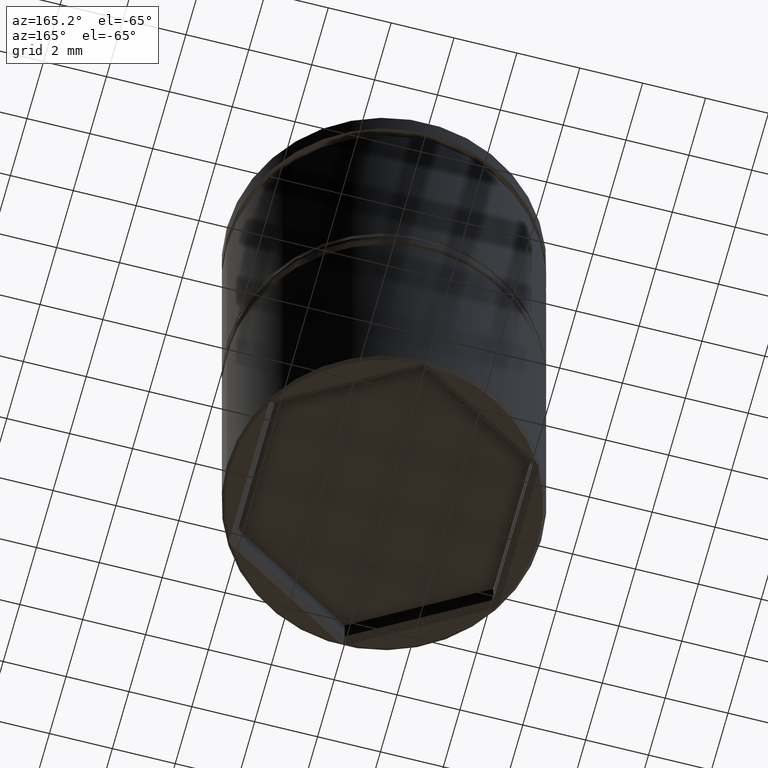
[diagram: clean part render]
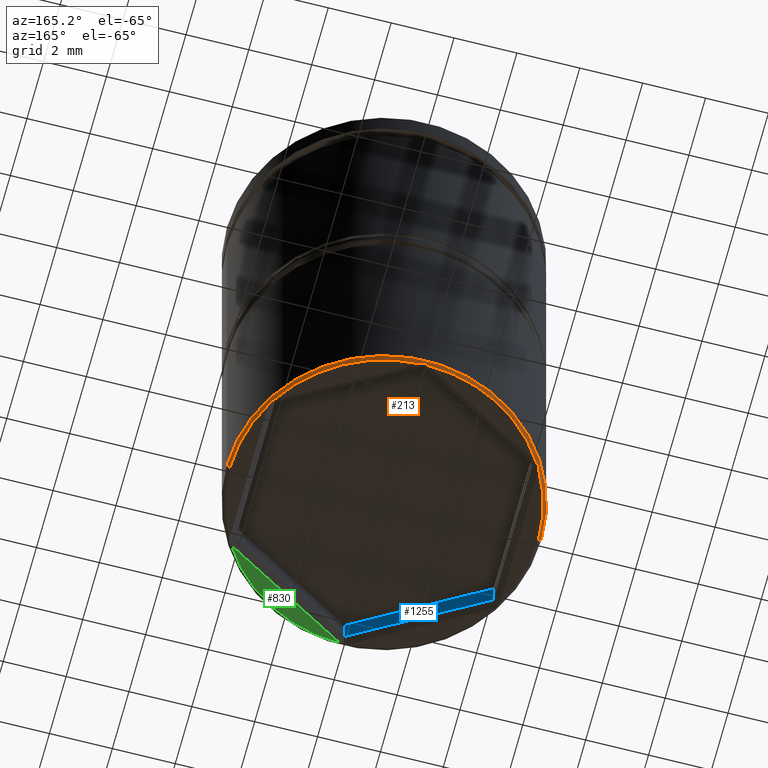
[diagram: same view with three faces highlighted in distinct colors, each labeled with its STEP entity id]
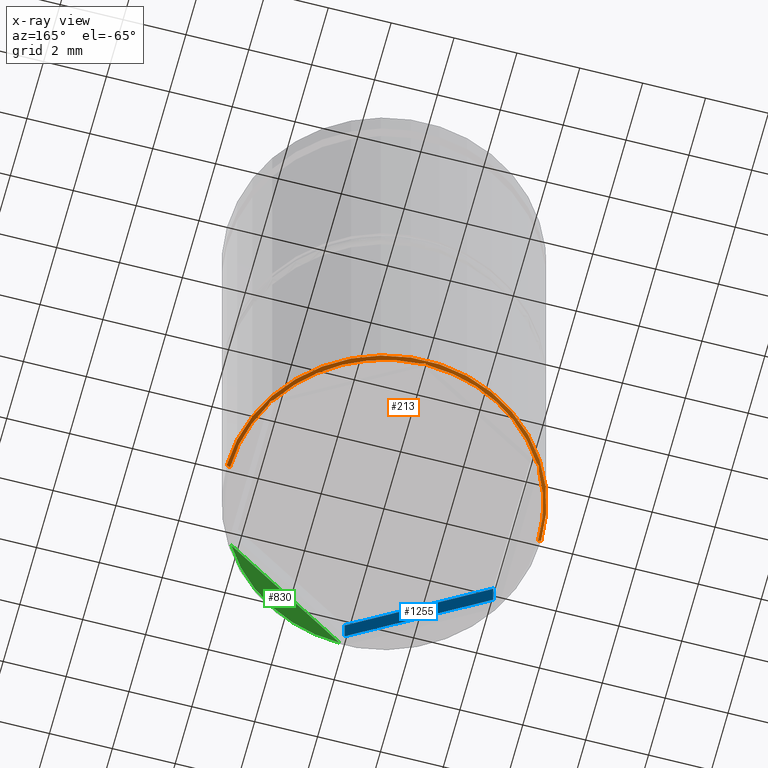
[diagram: x-ray of the same camera — body ghosted, the three highlighted faces saturated]
A machine part, auxiliary view with three faces highlighted in distinct colors.
The next image is the same camera in x-ray (body ghosted, the three faces saturated) — at least one of them is partly hidden behind the body in this view.
Their STEP definitions:

[orange] entity #213 — the highlighted conical surface has half-angle 45 deg.
#7 = DIRECTION ( 'NONE',  ( 0.000000000000000000, 0.000000000000000000, -1.000000000000000000 ) ) ;
#26 = ORIENTED_EDGE ( 'NONE', *, *, #197, .F. ) ;
#56 = ORIENTED_EDGE ( 'NONE', *, *, #274, .T. ) ;
#70 = CARTESIAN_POINT ( 'NONE',  ( -0.1153010050624300176, 4.898643248720151888, -17.50000000000000000 ) ) ;
#75 = VERTEX_POINT ( 'NONE', #980 ) ;
#87 = VERTEX_POINT ( 'NONE', #799 ) ;
#104 = CIRCLE ( 'NONE', #1358, 4.899999999999991473 ) ;
#114 = CARTESIAN_POINT ( 'NONE',  ( 0.000000000000000000, 0.000000000000000000, -17.50000000000000000 ) ) ;
#153 = CARTESIAN_POINT ( 'NONE',  ( -4.269734859267336091, 2.465132570366327158, -17.46973485926734071 ) ) ;
#172 = ORIENTED_EDGE ( 'NONE', *, *, #607, .T. ) ;
#197 = EDGE_CURVE ( 'NONE', #599, #276, #350, .T. ) ;
#207 = CARTESIAN_POINT ( 'NONE',  ( 4.290125711785978346, 2.388133565606506359, -17.49012571178598208 ) ) ;
#213 = ADVANCED_FACE ( 'NONE', ( #384 ), #572, .T. ) ;
#215 = CARTESIAN_POINT ( 'NONE',  ( 0.000000000000000000, 0.000000000000000000, -17.50000000000000000 ) ) ;
#216 = ORIENTED_EDGE ( 'NONE', *, *, #1318, .T. ) ;
#238 = CARTESIAN_POINT ( 'NONE',  ( -0.03844244460728678953, 4.919964518745049809, -17.48003548125494433 ) ) ;
#248 = CARTESIAN_POINT ( 'NONE',  ( 4.241593036647651083, 2.493274392986010390, -17.48003548125494433 ) ) ;
#267 = CARTESIAN_POINT ( 'NONE',  ( -4.213247191338535202, 2.521291069032205012, -17.49012571178598208 ) ) ;
#268 = VERTEX_POINT ( 'NONE', #1343 ) ;
#274 = EDGE_CURVE ( 'NONE', #599, #488, #363, .T. ) ;
#276 = VERTEX_POINT ( 'NONE', #406 ) ;
#315 = CARTESIAN_POINT ( 'NONE',  ( 0.000000000000000000, 0.000000000000000000, -17.39999999999999147 ) ) ;
#338 = VERTEX_POINT ( 'NONE', #557 ) ;
#345 = EDGE_CURVE ( 'NONE', #87, #268, #1164, .T. ) ;
#350 = CIRCLE ( 'NONE', #593, 4.899999999999991473 ) ;
#356 = B_SPLINE_CURVE_WITH_KNOTS ( 'NONE', 3,
 ( #1160, #207, #516, #1383 ),
 .UNSPECIFIED., .F., .F.,
 ( 4, 4 ),
 ( 0.000000000000000000, 0.0001233298202642967099 ),
 .UNSPECIFIED. ) ;
#357 = CARTESIAN_POINT ( 'NONE',  ( -4.241593036647650194, 2.493274392986013055, -17.48003548125494433 ) ) ;
#363 = B_SPLINE_CURVE_WITH_KNOTS ( 'NONE', 3,
 ( #928, #1045, #1363, #948 ),
 .UNSPECIFIED., .F., .F.,
 ( 4, 4 ),
 ( 1.897353801849632760E-19, 0.0001233298202642985259 ),
 .UNSPECIFIED. ) ;
#374 = CIRCLE ( 'NONE', #994, 4.899999999999991473 ) ;
#382 = ORIENTED_EDGE ( 'NONE', *, *, #1028, .F. ) ;
#384 = FACE_OUTER_BOUND ( 'NONE', #1247, .T. ) ;
#406 = CARTESIAN_POINT ( 'NONE',  ( 4.184698994937568806, 2.549175223826016357, -17.50000000000000000 ) ) ;
#409 = EDGE_CURVE ( 'NONE', #1081, #932, #548, .T. ) ;
#416 = B_SPLINE_CURVE_WITH_KNOTS ( 'NONE', 3,
 ( #893, #267, #357, #153 ),
 .UNSPECIFIED., .F., .F.,
 ( 4, 4 ),
 ( 0.000000000000000000, 0.0001233298202643005859 ),
 .UNSPECIFIED. ) ;
#444 = VECTOR ( 'NONE', #1216, 1000.000000000000227 ) ;
#460 = CARTESIAN_POINT ( 'NONE',  ( -4.269734859267336091, 2.465132570366327158, -17.46973485926734071 ) ) ;
#488 = VERTEX_POINT ( 'NONE', #1346 ) ;
#516 = CARTESIAN_POINT ( 'NONE',  ( 4.280035481254937935, 2.426690125759038530, -17.48003548125494433 ) ) ;
#521 = B_SPLINE_CURVE_WITH_KNOTS ( 'NONE', 3,
 ( #531, #248, #639, #665 ),
 .UNSPECIFIED., .F., .F.,
 ( 4, 4 ),
 ( 0.000000000000000000, 0.0001233298202642985259 ),
 .UNSPECIFIED. ) ;
#531 = CARTESIAN_POINT ( 'NONE',  ( 4.269734859267336979, 2.465132570366324050, -17.46973485926734071 ) ) ;
#535 = LINE ( 'NONE', #1297, #661 ) ;
#548 = CIRCLE ( 'NONE', #1335, 5.000000000000000000 ) ;
#557 = CARTESIAN_POINT ( 'NONE',  ( 4.899999999999991473, 0.000000000000000000, -17.50000000000000000 ) ) ;
#561 = LINE ( 'NONE', #981, #444 ) ;
#564 = CARTESIAN_POINT ( 'NONE',  ( 0.000000000000000000, 0.000000000000000000, -17.39999999999999147 ) ) ;
#570 = ORIENTED_EDGE ( 'NONE', *, *, #717, .T. ) ;
#572 = CONICAL_SURFACE ( 'NONE', #1288, 5.000000000000000000, 0.7853981633974439491 ) ;
#583 = ORIENTED_EDGE ( 'NONE', *, *, #1078, .F. ) ;
#593 = AXIS2_PLACEMENT_3D ( 'NONE', #933, #938, #641 ) ;
#595 = DIRECTION ( 'NONE',  ( 1.000000000000000000, 0.000000000000000000, 0.000000000000000000 ) ) ;
#599 = VERTEX_POINT ( 'NONE', #960 ) ;
#607 = EDGE_CURVE ( 'NONE', #1148, #276, #521, .T. ) ;
#639 = CARTESIAN_POINT ( 'NONE',  ( 4.213247191338535202, 2.521291069032199683, -17.49012571178598208 ) ) ;
#641 = DIRECTION ( 'NONE',  ( -1.000000000000000000, 0.000000000000000000, 0.000000000000000000 ) ) ;
#647 = CARTESIAN_POINT ( 'NONE',  ( -4.184698994937566141, 2.549175223826019909, -17.50000000000000000 ) ) ;
#659 = CARTESIAN_POINT ( 'NONE',  ( -4.280035481254937046, 2.426690125759040750, -17.48003548125494078 ) ) ;
#661 = VECTOR ( 'NONE', #1073, 1000.000000000000227 ) ;
#665 = CARTESIAN_POINT ( 'NONE',  ( 4.184698994937568806, 2.549175223826016357, -17.50000000000000000 ) ) ;
#672 = DIRECTION ( 'NONE',  ( -1.000000000000000000, 0.000000000000000000, 0.000000000000000000 ) ) ;
#717 = EDGE_CURVE ( 'NONE', #488, #75, #869, .T. ) ;
#739 = DIRECTION ( 'NONE',  ( -0.000000000000000000, -0.000000000000000000, 1.000000000000000000 ) ) ;
#757 = ORIENTED_EDGE ( 'NONE', *, *, #1179, .T. ) ;
#761 = EDGE_CURVE ( 'NONE', #1278, #87, #416, .T. ) ;
#798 = CIRCLE ( 'NONE', #1340, 4.899999999999991473 ) ;
#799 = CARTESIAN_POINT ( 'NONE',  ( -4.269734859267336091, 2.465132570366327158, -17.46973485926734071 ) ) ;
#819 = CARTESIAN_POINT ( 'NONE',  ( 4.299999999999996270, 2.349468024894134199, -17.50000000000000000 ) ) ;
#845 = ORIENTED_EDGE ( 'NONE', *, *, #1350, .F. ) ;
#850 = CARTESIAN_POINT ( 'NONE',  ( -4.899999999999991473, 6.062001655779392595E-16, -17.50000000000000000 ) ) ;
#866 = CARTESIAN_POINT ( 'NONE',  ( 5.000000000000000000, 0.000000000000000000, -17.39999999999999147 ) ) ;
#869 = B_SPLINE_CURVE_WITH_KNOTS ( 'NONE', 3,
 ( #1195, #238, #898, #70 ),
 .UNSPECIFIED., .F., .F.,
 ( 4, 4 ),
 ( 5.250655767852579169E-19, 0.0001233298202642988512 ),
 .UNSPECIFIED. ) ;
#893 = CARTESIAN_POINT ( 'NONE',  ( -4.184698994937566141, 2.549175223826019909, -17.50000000000000000 ) ) ;
#896 = CARTESIAN_POINT ( 'NONE',  ( 0.000000000000000000, 0.000000000000000000, -17.50000000000000000 ) ) ;
#898 = CARTESIAN_POINT ( 'NONE',  ( -0.07687852044744457325, 4.909424634638707374, -17.49012571178598208 ) ) ;
#928 = CARTESIAN_POINT ( 'NONE',  ( 0.1153010050624291294, 4.898643248720151000, -17.50000000000000000 ) ) ;
#932 = VERTEX_POINT ( 'NONE', #1136 ) ;
#933 = CARTESIAN_POINT ( 'NONE',  ( 0.000000000000000000, 0.000000000000000000, -17.50000000000000000 ) ) ;
#938 = DIRECTION ( 'NONE',  ( 0.000000000000000000, 0.000000000000000000, -1.000000000000000000 ) ) ;
#944 = DIRECTION ( 'NONE',  ( -1.000000000000000000, 0.000000000000000000, 0.000000000000000000 ) ) ;
#948 = CARTESIAN_POINT ( 'NONE',  ( 2.092019513438907881E-17, 4.930265140732650764, -17.46973485926734071 ) ) ;
#954 = CARTESIAN_POINT ( 'NONE',  ( -4.299999999999996270, 2.349468024894134199, -17.50000000000000000 ) ) ;
#960 = CARTESIAN_POINT ( 'NONE',  ( 0.1153010050624291294, 4.898643248720151000, -17.50000000000000000 ) ) ;
#980 = CARTESIAN_POINT ( 'NONE',  ( -0.1153010050624300176, 4.898643248720151888, -17.50000000000000000 ) ) ;
#981 = CARTESIAN_POINT ( 'NONE',  ( -5.000000000000000000, 6.123233995736766282E-16, -17.39999999999999147 ) ) ;
#994 = AXIS2_PLACEMENT_3D ( 'NONE', #896, #1008, #1231 ) ;
#999 = VERTEX_POINT ( 'NONE', #819 ) ;
#1008 = DIRECTION ( 'NONE',  ( 0.000000000000000000, 0.000000000000000000, -1.000000000000000000 ) ) ;
#1028 = EDGE_CURVE ( 'NONE', #1278, #75, #104, .T. ) ;
#1045 = CARTESIAN_POINT ( 'NONE',  ( 0.07687852044744407365, 4.909424634638709151, -17.49012571178598208 ) ) ;
#1062 = DIRECTION ( 'NONE',  ( 0.000000000000000000, 0.000000000000000000, -1.000000000000000000 ) ) ;
#1073 = DIRECTION ( 'NONE',  ( 0.7071067811865444641, 0.000000000000000000, 0.7071067811865505703 ) ) ;
#1076 = VERTEX_POINT ( 'NONE', #850 ) ;
#1078 = EDGE_CURVE ( 'NONE', #999, #338, #798, .T. ) ;
#1081 = VERTEX_POINT ( 'NONE', #866 ) ;
#1086 = CARTESIAN_POINT ( 'NONE',  ( -4.290125711785978346, 2.388133565606507691, -17.49012571178598208 ) ) ;
#1113 = ORIENTED_EDGE ( 'NONE', *, *, #761, .T. ) ;
#1136 = CARTESIAN_POINT ( 'NONE',  ( -5.000000000000000000, 6.123233995736766282E-16, -17.39999999999999147 ) ) ;
#1148 = VERTEX_POINT ( 'NONE', #1222 ) ;
#1160 = CARTESIAN_POINT ( 'NONE',  ( 4.299999999999996270, 2.349468024894134199, -17.50000000000000000 ) ) ;
#1164 = B_SPLINE_CURVE_WITH_KNOTS ( 'NONE', 3,
 ( #460, #659, #1086, #954 ),
 .UNSPECIFIED., .F., .F.,
 ( 4, 4 ),
 ( 1.301042606982605321E-18, 0.0001233298202643010196 ),
 .UNSPECIFIED. ) ;
#1179 = EDGE_CURVE ( 'NONE', #1076, #932, #561, .T. ) ;
#1195 = CARTESIAN_POINT ( 'NONE',  ( 2.092019513438907881E-17, 4.930265140732650764, -17.46973485926734071 ) ) ;
#1214 = EDGE_CURVE ( 'NONE', #338, #1081, #535, .T. ) ;
#1216 = DIRECTION ( 'NONE',  ( -0.7071067811865444641, 8.659560562354895880E-17, 0.7071067811865505703 ) ) ;
#1222 = CARTESIAN_POINT ( 'NONE',  ( 4.269734859267336979, 2.465132570366324050, -17.46973485926734071 ) ) ;
#1231 = DIRECTION ( 'NONE',  ( -1.000000000000000000, 0.000000000000000000, 0.000000000000000000 ) ) ;
#1247 = EDGE_LOOP ( 'NONE', ( #845, #757, #1360, #1261, #583, #216, #172, #26, #56, #570, #382, #1113, #1298 ) ) ;
#1261 = ORIENTED_EDGE ( 'NONE', *, *, #1214, .F. ) ;
#1278 = VERTEX_POINT ( 'NONE', #647 ) ;
#1288 = AXIS2_PLACEMENT_3D ( 'NONE', #315, #739, #595 ) ;
#1293 = DIRECTION ( 'NONE',  ( -1.000000000000000000, 0.000000000000000000, 0.000000000000000000 ) ) ;
#1297 = CARTESIAN_POINT ( 'NONE',  ( 5.000000000000000000, 0.000000000000000000, -17.39999999999999147 ) ) ;
#1298 = ORIENTED_EDGE ( 'NONE', *, *, #345, .T. ) ;
#1318 = EDGE_CURVE ( 'NONE', #999, #1148, #356, .T. ) ;
#1319 = DIRECTION ( 'NONE',  ( -0.000000000000000000, -0.000000000000000000, 1.000000000000000000 ) ) ;
#1335 = AXIS2_PLACEMENT_3D ( 'NONE', #564, #1319, #672 ) ;
#1340 = AXIS2_PLACEMENT_3D ( 'NONE', #114, #1062, #1293 ) ;
#1343 = CARTESIAN_POINT ( 'NONE',  ( -4.299999999999996270, 2.349468024894134199, -17.50000000000000000 ) ) ;
#1346 = CARTESIAN_POINT ( 'NONE',  ( 2.092019513438907881E-17, 4.930265140732650764, -17.46973485926734071 ) ) ;
#1350 = EDGE_CURVE ( 'NONE', #1076, #268, #374, .T. ) ;
#1358 = AXIS2_PLACEMENT_3D ( 'NONE', #215, #7, #944 ) ;
#1360 = ORIENTED_EDGE ( 'NONE', *, *, #409, .F. ) ;
#1363 = CARTESIAN_POINT ( 'NONE',  ( 0.03844244460728603319, 4.919964518745049809, -17.48003548125494433 ) ) ;
#1383 = CARTESIAN_POINT ( 'NONE',  ( 4.269734859267336979, 2.465132570366324050, -17.46973485926734071 ) ) ;

[blue] entity #1255 — the highlighted planar face has unit normal (-0.5, -0.866, 0).
#6 = ORIENTED_EDGE ( 'NONE', *, *, #800, .T. ) ;
#33 = CARTESIAN_POINT ( 'NONE',  ( -8.646952822150503169E-16, -4.734272207354920603, -16.50000000000000000 ) ) ;
#35 = VECTOR ( 'NONE', #472, 1000.000000000000000 ) ;
#36 = VECTOR ( 'NONE', #646, 1000.000000000000000 ) ;
#55 = EDGE_CURVE ( 'NONE', #925, #133, #165, .T. ) ;
#59 = CARTESIAN_POINT ( 'NONE',  ( -4.099999999999990763, -2.367136103677459857, -17.29999999999999716 ) ) ;
#103 = VECTOR ( 'NONE', #1096, 1000.000000000000000 ) ;
#124 = CARTESIAN_POINT ( 'NONE',  ( -4.099999999999990763, -2.367136103677459857, -16.50000000000000000 ) ) ;
#133 = VERTEX_POINT ( 'NONE', #59 ) ;
#156 = LINE ( 'NONE', #242, #35 ) ;
#161 = LINE ( 'NONE', #1322, #103 ) ;
#165 = LINE ( 'NONE', #1197, #483 ) ;
#191 = ORIENTED_EDGE ( 'NONE', *, *, #1371, .F. ) ;
#242 = CARTESIAN_POINT ( 'NONE',  ( -4.099999999999990763, -2.367136103677459857, -16.50000000000000000 ) ) ;
#304 = VERTEX_POINT ( 'NONE', #124 ) ;
#331 = ORIENTED_EDGE ( 'NONE', *, *, #55, .T. ) ;
#379 = EDGE_CURVE ( 'NONE', #380, #304, #1183, .T. ) ;
#380 = VERTEX_POINT ( 'NONE', #882 ) ;
#472 = DIRECTION ( 'NONE',  ( -0.000000000000000000, -0.000000000000000000, -1.000000000000000000 ) ) ;
#483 = VECTOR ( 'NONE', #1320, 1000.000000000000000 ) ;
#491 = ORIENTED_EDGE ( 'NONE', *, *, #379, .F. ) ;
#528 = EDGE_LOOP ( 'NONE', ( #6, #331, #191, #491 ) ) ;
#646 = DIRECTION ( 'NONE',  ( -0.8660254037844385966, 0.5000000000000001110, 0.000000000000000000 ) ) ;
#654 = DIRECTION ( 'NONE',  ( 0.8660254037844385966, -0.5000000000000001110, 0.000000000000000000 ) ) ;
#756 = PLANE ( 'NONE',  #1133 ) ;
#800 = EDGE_CURVE ( 'NONE', #380, #925, #161, .T. ) ;
#842 = CARTESIAN_POINT ( 'NONE',  ( -8.646952822150503169E-16, -4.734272207354920603, -16.50000000000000000 ) ) ;
#882 = CARTESIAN_POINT ( 'NONE',  ( -8.646952822150503169E-16, -4.734272207354920603, -16.50000000000000000 ) ) ;
#925 = VERTEX_POINT ( 'NONE', #1043 ) ;
#1043 = CARTESIAN_POINT ( 'NONE',  ( -8.646952822150503169E-16, -4.734272207354920603, -17.29999999999999716 ) ) ;
#1066 = FACE_OUTER_BOUND ( 'NONE', #528, .T. ) ;
#1096 = DIRECTION ( 'NONE',  ( -0.000000000000000000, -0.000000000000000000, -1.000000000000000000 ) ) ;
#1133 = AXIS2_PLACEMENT_3D ( 'NONE', #842, #1274, #654 ) ;
#1183 = LINE ( 'NONE', #33, #36 ) ;
#1197 = CARTESIAN_POINT ( 'NONE',  ( -4.099999999999990763, -2.367136103677460301, -17.29999999999999716 ) ) ;
#1255 = ADVANCED_FACE ( 'NONE', ( #1066 ), #756, .F. ) ;
#1274 = DIRECTION ( 'NONE',  ( -0.5000000000000001110, -0.8660254037844385966, 0.000000000000000000 ) ) ;
#1320 = DIRECTION ( 'NONE',  ( -0.8660254037844385966, 0.5000000000000001110, 0.000000000000000000 ) ) ;
#1322 = CARTESIAN_POINT ( 'NONE',  ( -8.646952822150503169E-16, -4.734272207354920603, -16.50000000000000000 ) ) ;
#1371 = EDGE_CURVE ( 'NONE', #304, #133, #156, .T. ) ;

[green] entity #830 — the highlighted planar face has unit normal (0, 0, -1).
#17 = CIRCLE ( 'NONE', #1379, 4.899999999999991473 ) ;
#119 = DIRECTION ( 'NONE',  ( 0.8660254037844387076, 0.4999999999999998890, 0.000000000000000000 ) ) ;
#122 = CARTESIAN_POINT ( 'NONE',  ( 0.000000000000000000, 0.000000000000000000, -17.50000000000000000 ) ) ;
#322 = VERTEX_POINT ( 'NONE', #1072 ) ;
#330 = LINE ( 'NONE', #972, #394 ) ;
#364 = DIRECTION ( 'NONE',  ( -1.000000000000000000, 0.000000000000000000, -0.000000000000000000 ) ) ;
#369 = FACE_OUTER_BOUND ( 'NONE', #413, .T. ) ;
#394 = VECTOR ( 'NONE', #119, 1000.000000000000000 ) ;
#413 = EDGE_LOOP ( 'NONE', ( #840, #648 ) ) ;
#447 = DIRECTION ( 'NONE',  ( 0.000000000000000000, 0.000000000000000000, -1.000000000000000000 ) ) ;
#544 = DIRECTION ( 'NONE',  ( -1.000000000000000000, 0.000000000000000000, 0.000000000000000000 ) ) ;
#584 = PLANE ( 'NONE',  #637 ) ;
#637 = AXIS2_PLACEMENT_3D ( 'NONE', #789, #1004, #364 ) ;
#648 = ORIENTED_EDGE ( 'NONE', *, *, #1281, .T. ) ;
#685 = CARTESIAN_POINT ( 'NONE',  ( 4.184698994937567917, -2.549175223826016801, -17.50000000000000000 ) ) ;
#777 = VERTEX_POINT ( 'NONE', #685 ) ;
#789 = CARTESIAN_POINT ( 'NONE',  ( 0.000000000000000000, 5.000000000000000000, -17.50000000000000000 ) ) ;
#830 = ADVANCED_FACE ( 'NONE', ( #369 ), #584, .T. ) ;
#840 = ORIENTED_EDGE ( 'NONE', *, *, #1052, .T. ) ;
#972 = CARTESIAN_POINT ( 'NONE',  ( 4.199999999999993960, -2.540341184434352861, -17.50000000000000000 ) ) ;
#1004 = DIRECTION ( 'NONE',  ( 0.000000000000000000, 0.000000000000000000, -1.000000000000000000 ) ) ;
#1052 = EDGE_CURVE ( 'NONE', #777, #322, #17, .T. ) ;
#1072 = CARTESIAN_POINT ( 'NONE',  ( 0.1153010050624278526, -4.898643248720151000, -17.50000000000000000 ) ) ;
#1281 = EDGE_CURVE ( 'NONE', #322, #777, #330, .T. ) ;
#1379 = AXIS2_PLACEMENT_3D ( 'NONE', #122, #447, #544 ) ;